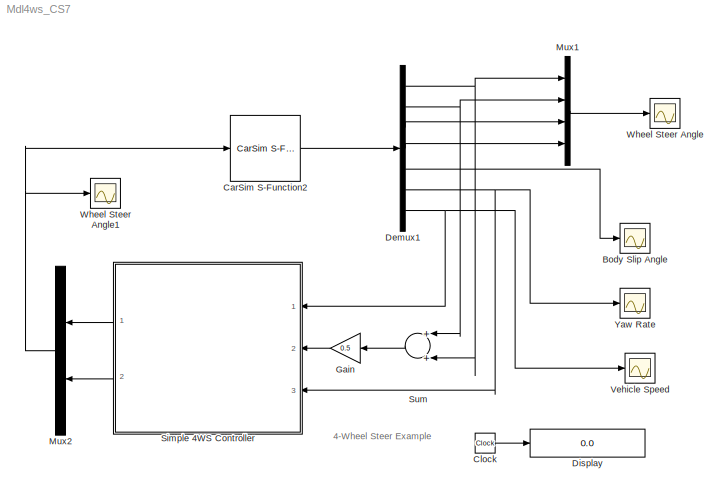
MODEL Mdl4ws_CS7
KIND model
BLOCK [Scope] Body Slip Angle
  DataFormat = Array
  Decimation = 10
  Floating = off
  LimitDataPoints = off
  NumInputPorts = 1
  Ports = [1]
  TickLabels = on
  YMax = 10
  YMin = -10
BLOCK [Reference] CarSim S-Function2  REF=Solver_SF/CarSim S-Function2
  AttributesFormatString = Vehicle Code: %<VehicleCode>
  Ports = [1, 1]
  Priority = 1
  SourceBlock = Solver_SF/CarSim S-Function2
  SourceType = Vehicle math model library
  VehicleCode = ???
BLOCK [Clock] Clock
  Decimation = 10
BLOCK [Demux] Demux1
  Outputs = [1 1 1 1 1 1 1]
  Ports = [1, 7]
BLOCK [Display] Display
  Decimation = 100
  Format = bank
  Lockdown = off
  Ports = [1]
BLOCK [Gain] Gain
  Gain = 0.5
  OutDataType = sfix(16)
  OutScaling = 2^0
  ParameterDataType = sfix(16)
  ParameterScaling = 2^0
BLOCK [Mux] Mux1
  DisplayOption = bar
  Ports = [4, 1]
BLOCK [Mux] Mux2
  DisplayOption = bar
  Inputs = 2
  Ports = [2, 1]
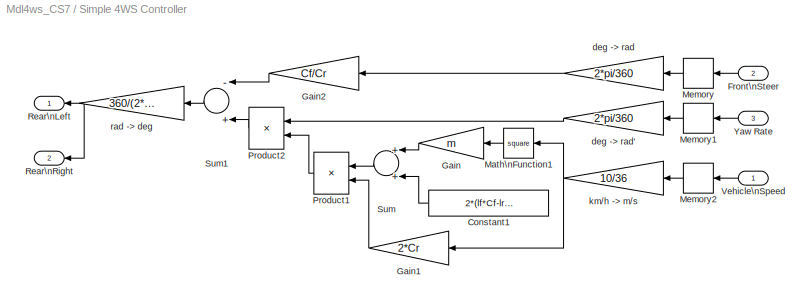
BLOCK [SubSystem] Simple 4WS Controller
  FunctionWithSeparateData = off
  MaskCallbackString = ||||
  MaskEnableString = on,on,on,on,on
  MaskHideContents = off
  MaskIconFrame = on
  MaskIconOpaque = on
  MaskIconRotate = none
  MaskIconUnits = autoscale
  MaskPromptString = body mass (kg)|length f-G (m)|length r-G (m)|conering power f  (N/rad)|conering power r  (N/rad)
  MaskStyleString = edit,edit,edit,edit,edit
  MaskToolTipString = on,on,on,on,on
  MaskTunableValueString = on,on,on,on,on
  MaskValueString = 1530|1.11|1.666|97937|70287
  MaskVariables = m=@1;lf=@2;lr=@3;Cf=@4;Cr=@5;
  MaskVisibilityString = on,on,on,on,on
  MinAlgLoopOccurrences = off
  Ports = [3, 2]
  PropExecContextOutsideSubsystem = off
  RTWSystemCode = Auto
BLOCK [Constant] Simple 4WS Controller/Constant1
  OutDataType = sfix(16)
  OutScaling = 2^0
  Value = 2*(lf*Cf-lr*Cr)
BLOCK [Inport] Simple 4WS Controller/Front\nSteer
  IconDisplay = Port number
  OutDataType = sfix(16)
  OutScaling = 2^0
  Port = 2
BLOCK [Gain] Simple 4WS Controller/Gain
  Gain = m
  OutDataType = sfix(16)
  OutScaling = 2^0
  ParameterDataType = sfix(16)
  ParameterScaling = 2^0
BLOCK [Gain] Simple 4WS Controller/Gain1
  Gain = 2*Cr
  OutDataType = sfix(16)
  OutScaling = 2^0
  ParameterDataType = sfix(16)
  ParameterScaling = 2^0
BLOCK [Gain] Simple 4WS Controller/Gain2
  Gain = Cf/Cr
  OutDataType = sfix(16)
  OutScaling = 2^0
  ParameterDataType = sfix(16)
  ParameterScaling = 2^0
BLOCK [Math] Simple 4WS Controller/Math\nFunction1
  Operator = square
  Ports = [1, 1]
BLOCK [Memory] Simple 4WS Controller/Memory
BLOCK [Memory] Simple 4WS Controller/Memory1
BLOCK [Memory] Simple 4WS Controller/Memory2
  X0 = 80
BLOCK [Product] Simple 4WS Controller/Product1
  Inputs = */
  OutDataType = sfix(16)
  OutScaling = 2^0
  Ports = [2, 1]
  RndMeth = Floor
BLOCK [Product] Simple 4WS Controller/Product2
  OutDataType = sfix(16)
  OutScaling = 2^0
  Ports = [2, 1]
  RndMeth = Floor
BLOCK [Outport] Simple 4WS Controller/Rear\nLeft
  IconDisplay = Port number
  InitialOutput = 0
BLOCK [Outport] Simple 4WS Controller/Rear\nRight
  IconDisplay = Port number
  InitialOutput = 0
  Port = 2
BLOCK [Sum] Simple 4WS Controller/Sum
  OutDataType = sfix(16)
  OutScaling = 2^0
  Ports = [2, 1]
BLOCK [Sum] Simple 4WS Controller/Sum1
  Inputs = -+
  OutDataType = sfix(16)
  OutScaling = 2^0
  Ports = [2, 1]
BLOCK [Inport] Simple 4WS Controller/Vehicle\nSpeed
  IconDisplay = Port number
  OutDataType = sfix(16)
  OutScaling = 2^0
BLOCK [Inport] Simple 4WS Controller/Yaw Rate
  IconDisplay = Port number
  OutDataType = sfix(16)
  OutScaling = 2^0
  Port = 3
BLOCK [Gain] Simple 4WS Controller/deg -> rad
  Gain = 2*pi/360
  OutDataType = sfix(16)
  OutScaling = 2^0
  ParameterDataType = sfix(16)
  ParameterScaling = 2^0
BLOCK [Gain] Simple 4WS Controller/deg -> rad'
  Gain = 2*pi/360
  OutDataType = sfix(16)
  OutScaling = 2^0
  ParameterDataType = sfix(16)
  ParameterScaling = 2^0
BLOCK [Gain] Simple 4WS Controller/km//h -> m//s
  Gain = 10/36
  OutDataType = sfix(16)
  OutScaling = 2^0
  ParameterDataType = sfix(16)
  ParameterScaling = 2^0
BLOCK [Gain] Simple 4WS Controller/rad -> deg
  Gain = 360/(2*pi)
  OutDataType = sfix(16)
  OutScaling = 2^0
  ParameterDataType = sfix(16)
  ParameterScaling = 2^0
BLOCK [Sum] Sum
  OutDataType = sfix(16)
  OutScaling = 2^0
  Ports = [2, 1]
BLOCK [Scope] Vehicle Speed
  DataFormat = Array
  Decimation = 10
  Floating = off
  LimitDataPoints = off
  NumInputPorts = 1
  Ports = [1]
  TickLabels = on
  YMax = 150
  YMin = 0
BLOCK [Scope] Wheel Steer Angle
  DataFormat = Array
  Decimation = 10
  Floating = off
  LimitDataPoints = off
  NumInputPorts = 1
  Ports = [1]
  TickLabels = on
  YMax = 4
  YMin = -4
BLOCK [Scope] Wheel Steer Angle1
  DataFormat = Array
  Decimation = 10
  Floating = off
  NumInputPorts = 1
  Ports = [1]
  TickLabels = on
  TimeRange = 8
BLOCK [Scope] Yaw Rate
  DataFormat = Array
  Decimation = 10
  Floating = off
  LimitDataPoints = off
  NumInputPorts = 1
  Ports = [1]
  TickLabels = on
  YMax = 20
  YMin = -20
ANNOTATION (root): 4-Wheel Steer Example
LINE CarSim S-Function2:1 -> Demux1:1
LINE Clock:1 -> Display:1
NET Demux1:1 -> Mux1:1, Sum:2
NET Demux1:2 -> Mux1:2, Sum:1
LINE Demux1:3 -> Mux1:3
LINE Demux1:4 -> Mux1:4
LINE Demux1:5 -> Body Slip Angle:1
NET Demux1:6 -> Simple 4WS Controller:3, Yaw Rate:1
NET Demux1:7 -> Simple 4WS Controller:1, Vehicle Speed:1
LINE Gain:1 -> Simple 4WS Controller:2
LINE Mux1:1 -> Wheel Steer Angle:1
NET Mux2:1 -> CarSim S-Function2:1, Wheel Steer Angle1:1
LINE Simple 4WS Controller/Constant1:1 -> Simple 4WS Controller/Sum:2
LINE Simple 4WS Controller/Front\nSteer:1 -> Simple 4WS Controller/Memory:1
LINE Simple 4WS Controller/Gain1:1 -> Simple 4WS Controller/Product1:2
LINE Simple 4WS Controller/Gain2:1 -> Simple 4WS Controller/Sum1:1
LINE Simple 4WS Controller/Gain:1 -> Simple 4WS Controller/Sum:1
LINE Simple 4WS Controller/Math\nFunction1:1 -> Simple 4WS Controller/Gain:1
LINE Simple 4WS Controller/Memory1:1 -> Simple 4WS Controller/deg -> rad':1
LINE Simple 4WS Controller/Memory2:1 -> Simple 4WS Controller/km//h -> m//s:1
LINE Simple 4WS Controller/Memory:1 -> Simple 4WS Controller/deg -> rad:1
LINE Simple 4WS Controller/Product1:1 -> Simple 4WS Controller/Product2:2
LINE Simple 4WS Controller/Product2:1 -> Simple 4WS Controller/Sum1:2
LINE Simple 4WS Controller/Sum1:1 -> Simple 4WS Controller/rad -> deg:1
LINE Simple 4WS Controller/Sum:1 -> Simple 4WS Controller/Product1:1
LINE Simple 4WS Controller/Vehicle\nSpeed:1 -> Simple 4WS Controller/Memory2:1
LINE Simple 4WS Controller/Yaw Rate:1 -> Simple 4WS Controller/Memory1:1
LINE Simple 4WS Controller/deg -> rad':1 -> Simple 4WS Controller/Product2:1
LINE Simple 4WS Controller/deg -> rad:1 -> Simple 4WS Controller/Gain2:1
NET Simple 4WS Controller/km//h -> m//s:1 -> Simple 4WS Controller/Gain1:1, Simple 4WS Controller/Math\nFunction1:1
NET Simple 4WS Controller/rad -> deg:1 -> Simple 4WS Controller/Rear\nLeft:1, Simple 4WS Controller/Rear\nRight:1
LINE Simple 4WS Controller:1 -> Mux2:1
LINE Simple 4WS Controller:2 -> Mux2:2
LINE Sum:1 -> Gain:1
note: NET lines group one-source signal fan-out (src -> all destinations, sorted); 1:1 wires keep LINE
